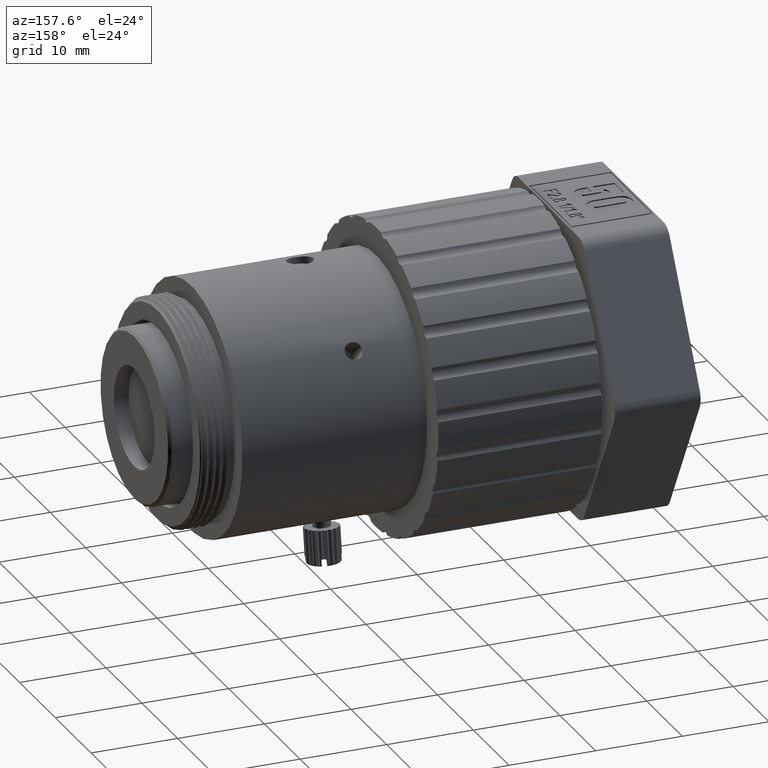
[diagram: clean part render]
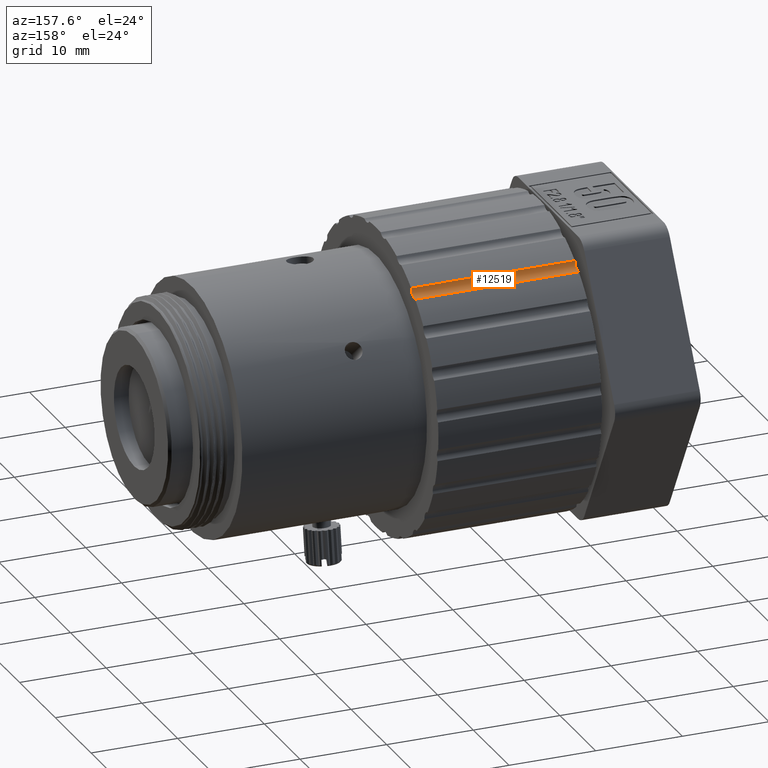
[diagram: same view with one face highlighted and labeled with its STEP entity id]
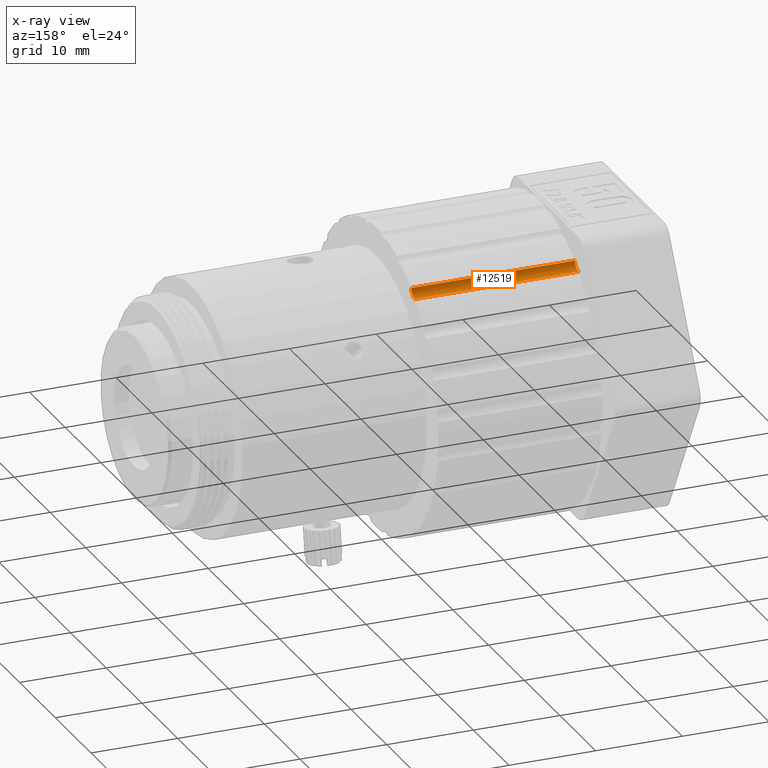
[diagram: x-ray of the same camera — body ghosted, the highlighted face saturated]
A machine part, auxiliary view. The second image highlights one B-rep face of the part: STEP entity #12519.
The next image is the same camera in x-ray: the body ghosted, the highlighted face saturated — about 0% of this face is hidden behind the body in this view.
In plain terms, the highlighted cylindrical surface (edge-blend (fillet) strip) has radius 1 mm, axis along (-1, 0, -0).
Its self-contained STEP definition (entity closure, byte-faithful):
#106 = CYLINDRICAL_SURFACE ( 'NONE', #10609, 1.000000000000123901 ) ;
#1014 = DIRECTION ( 'NONE',  ( -1.000000000000000000, 0.000000000000000000, -0.000000000000000000 ) ) ;
#1107 = ORIENTED_EDGE ( 'NONE', *, *, #6952, .F. ) ;
#1238 = VECTOR ( 'NONE', #4158, 1000.000000000000000 ) ;
#1343 = CARTESIAN_POINT ( 'NONE',  ( 17.28203147476259360, 4.097674969786524457, 14.60436034773493574 ) ) ;
#1884 = DIRECTION ( 'NONE',  ( 0.000000000000000000, -0.1454526080881494154, 0.9893652201287224113 ) ) ;
#1928 = AXIS2_PLACEMENT_3D ( 'NONE', #11230, #1014, #4559 ) ;
#1947 = CARTESIAN_POINT ( 'NONE',  ( -32.35023582608875614, 3.109784583102737088, 14.44920692722972966 ) ) ;
#2774 = LINE ( 'NONE', #6317, #1238 ) ;
#2828 = EDGE_CURVE ( 'NONE', #4290, #7569, #4197, .T. ) ;
#3172 = CIRCLE ( 'NONE', #1928, 1.000000000000123901 ) ;
#3782 = CIRCLE ( 'NONE', #8460, 1.000000000000123679 ) ;
#4158 = DIRECTION ( 'NONE',  ( 1.000000000000000000, -0.000000000000000000, 0.000000000000000000 ) ) ;
#4197 = LINE ( 'NONE', #1947, #10532 ) ;
#4236 = CARTESIAN_POINT ( 'NONE',  ( -8.031010005843386423, 4.233412761154298209, 13.61361555113127508 ) ) ;
#4290 = VERTEX_POINT ( 'NONE', #11894 ) ;
#4559 = DIRECTION ( 'NONE',  ( 0.000000000000000000, -0.1454526080881511085, 0.9893652201287221892 ) ) ;
#4979 = FACE_OUTER_BOUND ( 'NONE', #8457, .T. ) ;
#5138 = DIRECTION ( 'NONE',  ( -1.000000000000000000, 0.000000000000000000, -0.000000000000000000 ) ) ;
#5794 = ORIENTED_EDGE ( 'NONE', *, *, #13539, .F. ) ;
#6317 = CARTESIAN_POINT ( 'NONE',  ( -32.35023582608875614, 4.233412761154298209, 13.61361555113049704 ) ) ;
#6952 = EDGE_CURVE ( 'NONE', #7252, #4290, #3172, .T. ) ;
#7252 = VERTEX_POINT ( 'NONE', #4236 ) ;
#7569 = VERTEX_POINT ( 'NONE', #12355 ) ;
#8341 = ORIENTED_EDGE ( 'NONE', *, *, #11256, .F. ) ;
#8457 = EDGE_LOOP ( 'NONE', ( #8341, #5794, #14285, #1107 ) ) ;
#8460 = AXIS2_PLACEMENT_3D ( 'NONE', #10223, #14659, #1884 ) ;
#10212 = DIRECTION ( 'NONE',  ( -1.000000000000000000, 0.000000000000000000, -0.000000000000000000 ) ) ;
#10223 = CARTESIAN_POINT ( 'NONE',  ( -26.91612139076693211, 4.097674969786524457, 14.60436034773493574 ) ) ;
#10532 = VECTOR ( 'NONE', #10212, 1000.000000000000000 ) ;
#10609 = AXIS2_PLACEMENT_3D ( 'NONE', #1343, #5138, #13021 ) ;
#11083 = VERTEX_POINT ( 'NONE', #11582 ) ;
#11230 = CARTESIAN_POINT ( 'NONE',  ( -8.031010005843386423, 4.097674969786524457, 14.60436034773493574 ) ) ;
#11256 = EDGE_CURVE ( 'NONE', #11083, #7252, #2774, .T. ) ;
#11582 = CARTESIAN_POINT ( 'NONE',  ( -26.91612139076693211, 4.233412761154298209, 13.61361555113127508 ) ) ;
#11894 = CARTESIAN_POINT ( 'NONE',  ( -8.031010005843386423, 3.109784583101848909, 14.44920692723061784 ) ) ;
#12355 = CARTESIAN_POINT ( 'NONE',  ( -26.91612139076693211, 3.109784583101848909, 14.44920692723050593 ) ) ;
#12519 = ADVANCED_FACE ( 'NONE', ( #4979 ), #106, .F. ) ;
#13021 = DIRECTION ( 'NONE',  ( 0.000000000000000000, -0.1454526080881511085, 0.9893652201287221892 ) ) ;
#13539 = EDGE_CURVE ( 'NONE', #7569, #11083, #3782, .T. ) ;
#14285 = ORIENTED_EDGE ( 'NONE', *, *, #2828, .F. ) ;
#14659 = DIRECTION ( 'NONE',  ( 1.000000000000000000, -0.000000000000000000, 0.000000000000000000 ) ) ;